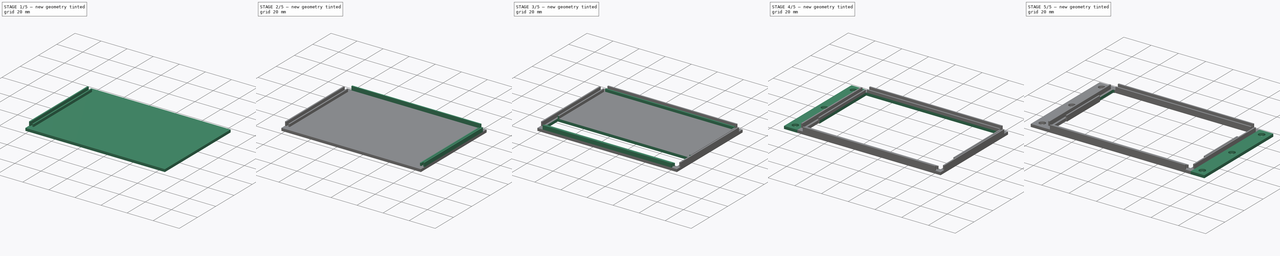
[diagram: build sequence overview — one tinted view per stage of 5, left to right]
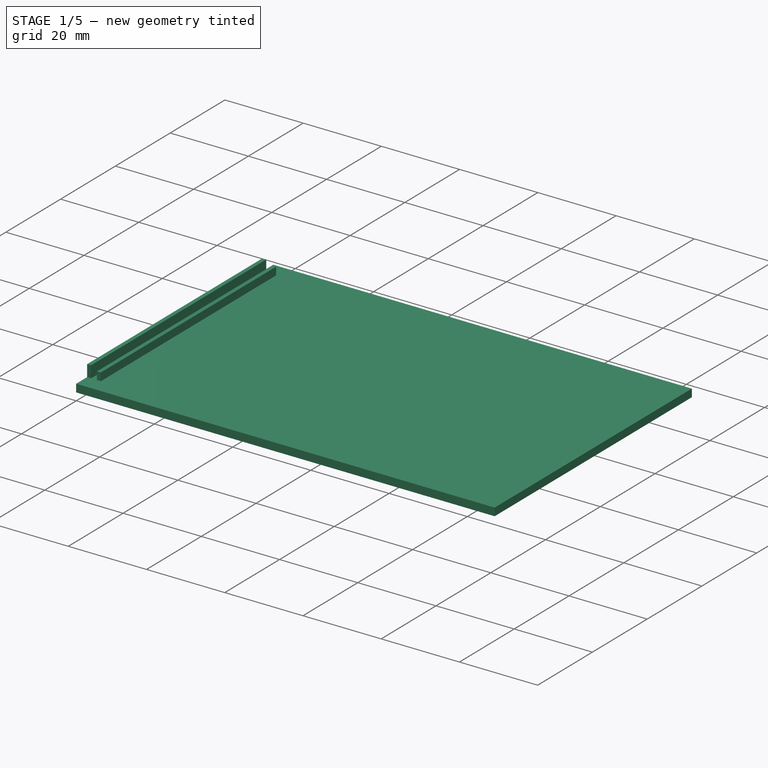
[diagram: stage 1 of 5 — iso view after this stage's code; geometry added in this stage tinted green]
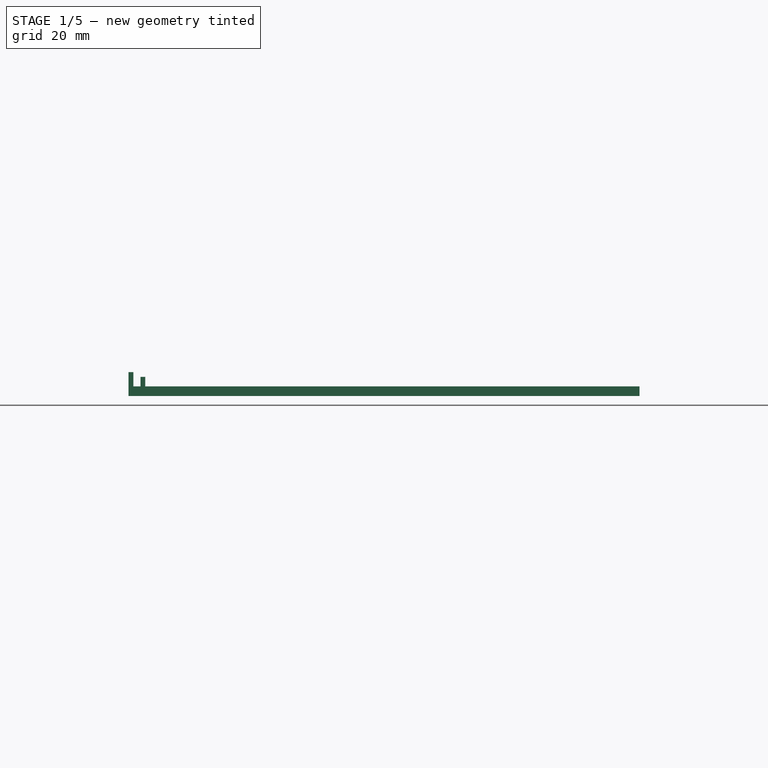
[diagram: stage 1 of 5 — front view after this stage's code; geometry added in this stage tinted green]
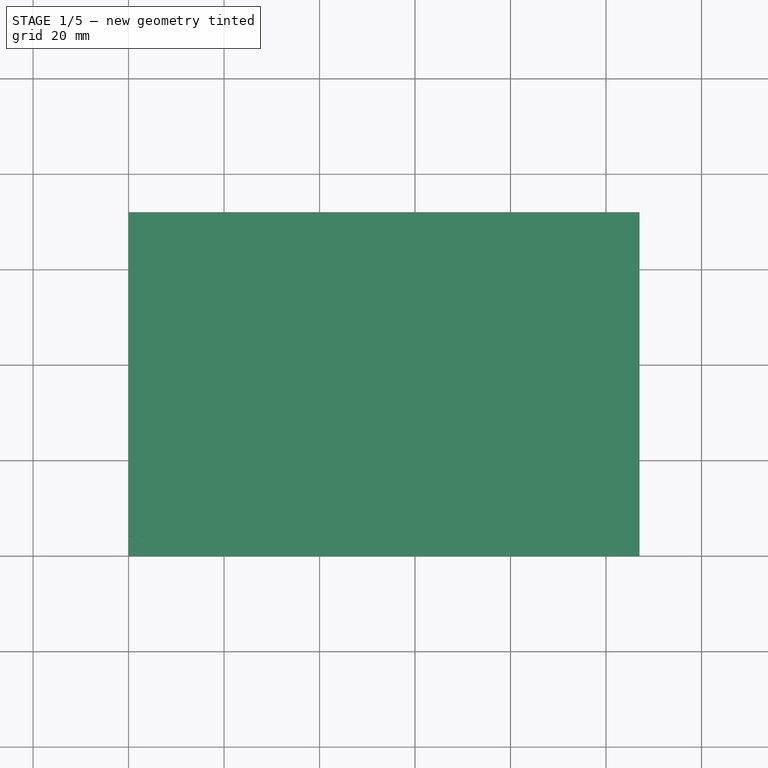
[diagram: stage 1 of 5 — top view after this stage's code; geometry added in this stage tinted green]
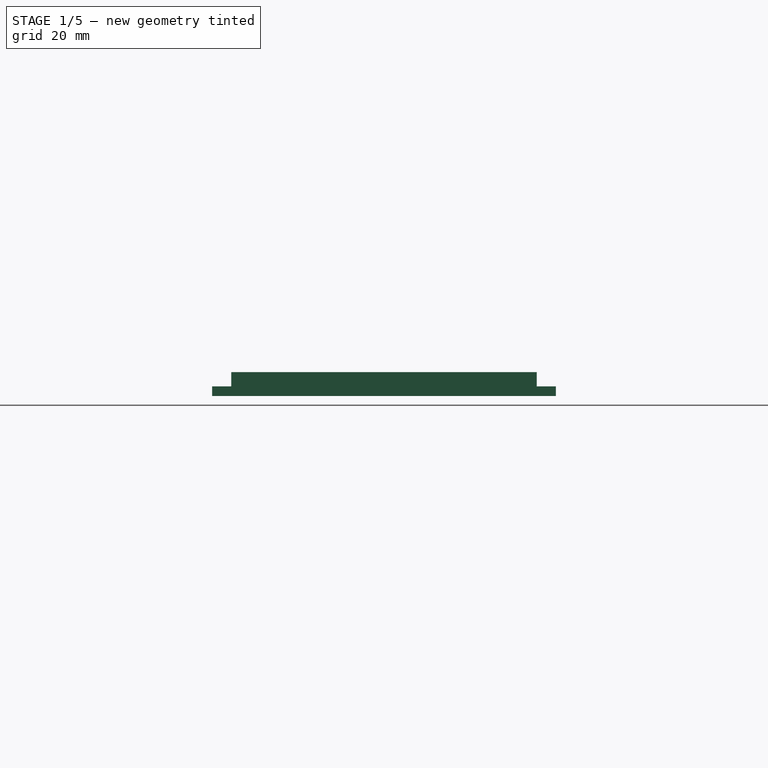
[diagram: stage 1 of 5 — right view after this stage's code; geometry added in this stage tinted green]
FCSTD DOCUMENT  (FreeCAD 0.17R13541 (Git))
Label: pi_box_front
License: All rights reserved
LicenseURL: http://en.wikipedia.org/wiki/All_rights_reserved
objects: Sketcher::SketchObject×16, PartDesign::Pad×11, PartDesign::Pocket×5, PartDesign::Body×1
note: 49 computed .brp shape members not serialized (recipe doc carries the construction recipe); baked Part::Feature solids carry a one-line shape summary decoded from their .brp

FEATURE [Sketcher::SketchObject] Sketch
  MapMode = 5
  Support = -> [XY_Plane]
  sketch-geometry (4):
    g0: LineSegment StartX=0 StartY=0 StartZ=0 EndX=107 EndY=0 EndZ=0
    g1: LineSegment StartX=107 StartY=0 StartZ=0 EndX=107 EndY=72 EndZ=0
    g2: LineSegment StartX=107 StartY=72 StartZ=0 EndX=0 EndY=72 EndZ=0
    g3: LineSegment StartX=0 StartY=72 StartZ=0 EndX=0 EndY=0 EndZ=0
  constraints (12):
    c: Coincident(g0,g1)
    c: Coincident(g1,g2)
    c: Coincident(g2,g3)
    c: Coincident(g3,g0)
    c: Horizontal(g0)
    c: Horizontal(g2)
    c: Vertical(g1)
    c: Vertical(g3)
    c: DistanceX(g0) = 0
    c: DistanceY(g0) = 0
    c: Distance(g3) = 72
    c: Distance(g0) = 107
FEATURE [PartDesign::Pad] Pad
  Length = 2
  Length2 = 100
  Profile = -> Sketch
  Reversed = true
  Type = 0
FEATURE [Sketcher::SketchObject] Sketch001
  MapMode = 5
  Support = -> [XY_Plane]
  sketch-geometry (4):
    g0: LineSegment StartX=0 StartY=68 StartZ=0 EndX=1 EndY=68 EndZ=0
    g1: LineSegment StartX=1 StartY=68 StartZ=0 EndX=1 EndY=4 EndZ=0
    g2: LineSegment StartX=1 StartY=4 StartZ=0 EndX=0 EndY=4 EndZ=0
    g3: LineSegment StartX=0 StartY=4 StartZ=0 EndX=0 EndY=68 EndZ=0
  constraints (14):
    c: Coincident(g0,g1)
    c: Coincident(g1,g2)
    c: Coincident(g2,g3)
    c: Coincident(g3,g0)
    c: Horizontal(g0)
    c: Horizontal(g2)
    c: Vertical(g1)
    c: Vertical(g3)
    c: Distance(g0) = 1
    c: Equal(g0,g2)
    c: Equal(g1,g3)
    c: Distance(g3) = 64
    c: DistanceX(g2) = 0
    c: DistanceY(g2) = 4
FEATURE [PartDesign::Pad] Pad001
  BaseFeature = -> Pad
  Length = 3
  Length2 = 100
  Profile = -> Sketch001
  Type = 0
FEATURE [Sketcher::SketchObject] Sketch002
  MapMode = 5
  Support = -> [XY_Plane]
  sketch-geometry (4):
    g0: LineSegment StartX=2.5 StartY=68 StartZ=0 EndX=3.5 EndY=68 EndZ=0
    g1: LineSegment StartX=3.5 StartY=68 StartZ=0 EndX=3.5 EndY=4 EndZ=0
    g2: LineSegment StartX=3.5 StartY=4 StartZ=0 EndX=2.5 EndY=4 EndZ=0
    g3: LineSegment StartX=2.5 StartY=4 StartZ=0 EndX=2.5 EndY=68 EndZ=0
  constraints (14):
    c: Coincident(g0,g1)
    c: Coincident(g1,g2)
    c: Coincident(g2,g3)
    c: Coincident(g3,g0)
    c: Horizontal(g0)
    c: Horizontal(g2)
    c: Vertical(g1)
    c: Vertical(g3)
    c: Distance(g0) = 1
    c: Equal(g0,g2)
    c: Equal(g1,g3)
    c: Distance(g3) = 64
    c: DistanceX(g2) = 2.5
    c: DistanceY(g2) = 4
FEATURE [PartDesign::Pad] Pad002
  BaseFeature = -> Pad001
  Length = 2
  Length2 = 100
  Profile = -> Sketch002
  Type = 0
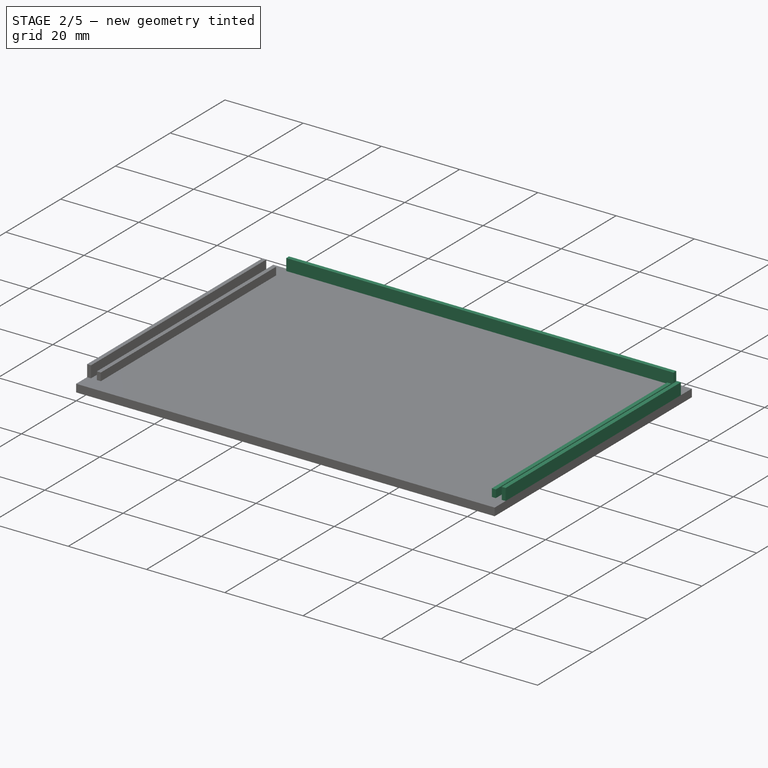
[diagram: stage 2 of 5 — iso view after this stage's code; geometry added in this stage tinted green]
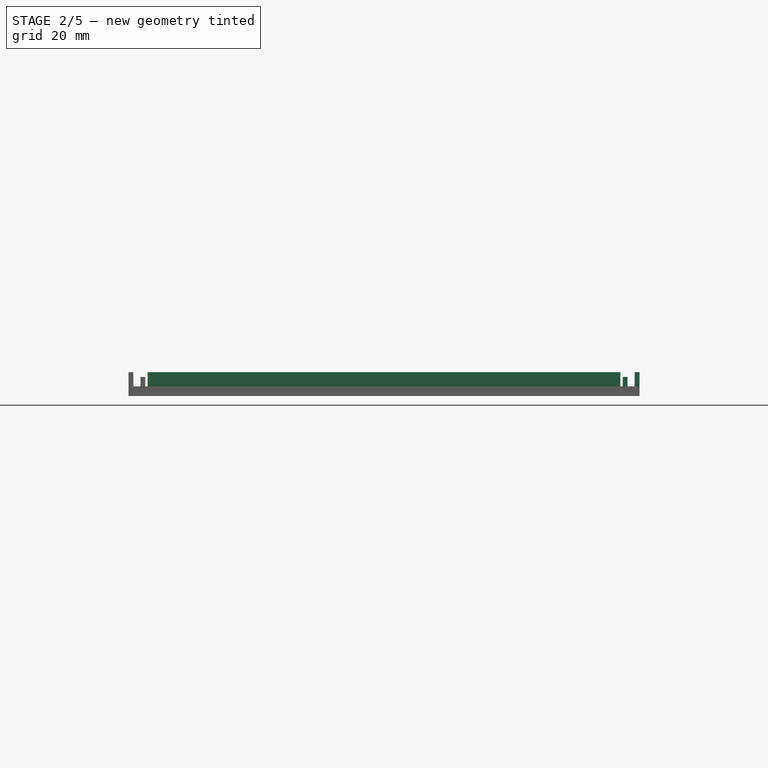
[diagram: stage 2 of 5 — front view after this stage's code; geometry added in this stage tinted green]
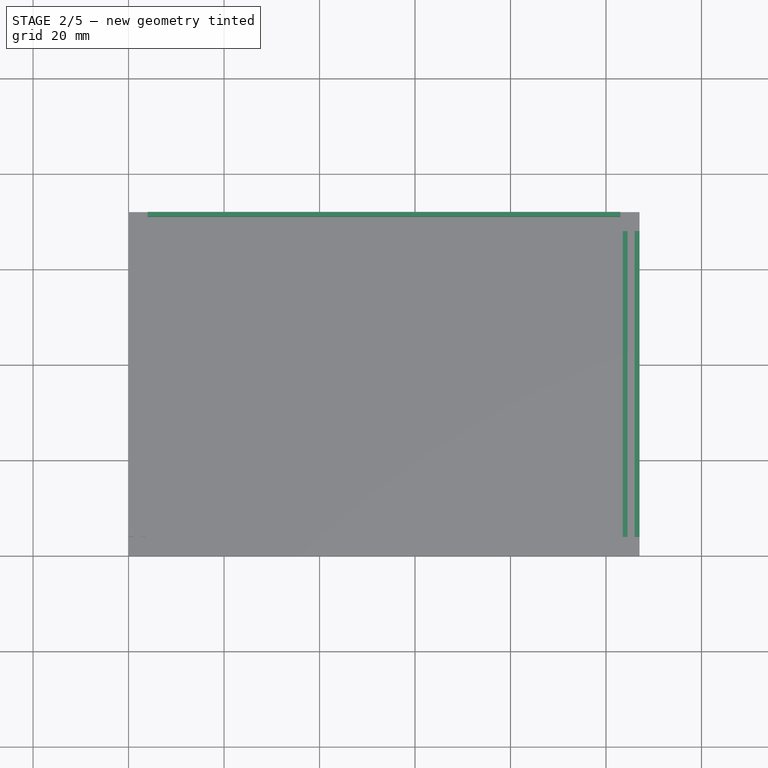
[diagram: stage 2 of 5 — top view after this stage's code; geometry added in this stage tinted green]
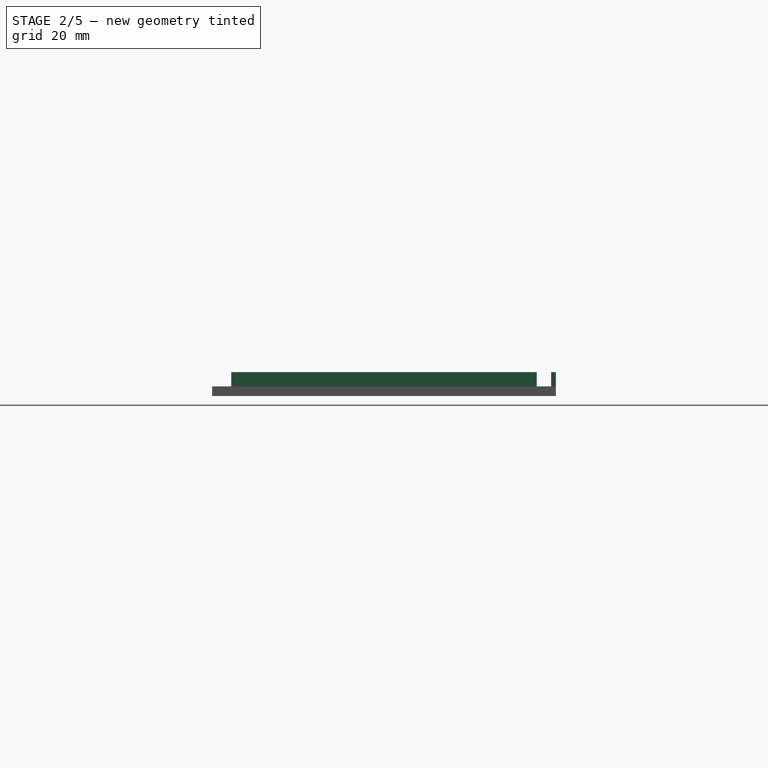
[diagram: stage 2 of 5 — right view after this stage's code; geometry added in this stage tinted green]
FEATURE [Sketcher::SketchObject] Sketch003
  MapMode = 5
  Support = -> [XY_Plane]
  sketch-geometry (4):
    g0: LineSegment StartX=104.5 StartY=68 StartZ=0 EndX=103.5 EndY=68 EndZ=0
    g1: LineSegment StartX=103.5 StartY=68 StartZ=0 EndX=103.5 EndY=4 EndZ=0
    g2: LineSegment StartX=103.5 StartY=4 StartZ=0 EndX=104.5 EndY=4 EndZ=0
    g3: LineSegment StartX=104.5 StartY=4 StartZ=0 EndX=104.5 EndY=68 EndZ=0
  constraints (14):
    c: Coincident(g0,g1)
    c: Coincident(g1,g2)
    c: Coincident(g2,g3)
    c: Coincident(g3,g0)
    c: Horizontal(g0)
    c: Horizontal(g2)
    c: Vertical(g1)
    c: Vertical(g3)
    c: Distance(g0) = 1
    c: Equal(g0,g2)
    c: Equal(g1,g3)
    c: Distance(g3) = 64
    c: DistanceX(g2) = 104.5
    c: DistanceY(g2) = 4
FEATURE [PartDesign::Pad] Pad003
  BaseFeature = -> Pad002
  Length = 2
  Length2 = 100
  Profile = -> Sketch003
  Type = 0
FEATURE [Sketcher::SketchObject] Sketch004
  MapMode = 5
  Support = -> [XY_Plane]
  sketch-geometry (4):
    g0: LineSegment StartX=107 StartY=68 StartZ=0 EndX=106 EndY=68 EndZ=0
    g1: LineSegment StartX=106 StartY=68 StartZ=0 EndX=106 EndY=4 EndZ=0
    g2: LineSegment StartX=106 StartY=4 StartZ=0 EndX=107 EndY=4 EndZ=0
    g3: LineSegment StartX=107 StartY=4 StartZ=0 EndX=107 EndY=68 EndZ=0
  constraints (14):
    c: Coincident(g0,g1)
    c: Coincident(g1,g2)
    c: Coincident(g2,g3)
    c: Coincident(g3,g0)
    c: Horizontal(g0)
    c: Horizontal(g2)
    c: Vertical(g1)
    c: Vertical(g3)
    c: Distance(g0) = 1
    c: Equal(g0,g2)
    c: Equal(g1,g3)
    c: Distance(g3) = 64
    c: DistanceX(g2) = 107
    c: DistanceY(g2) = 4
FEATURE [PartDesign::Pad] Pad004
  BaseFeature = -> Pad003
  Length = 3
  Length2 = 100
  Profile = -> Sketch004
  Type = 0
FEATURE [Sketcher::SketchObject] Sketch005
  MapMode = 5
  Support = -> [XY_Plane]
  sketch-geometry (4):
    g0: LineSegment StartX=4 StartY=72 StartZ=0 EndX=103 EndY=72 EndZ=0
    g1: LineSegment StartX=103 StartY=72 StartZ=0 EndX=103 EndY=71 EndZ=0
    g2: LineSegment StartX=103 StartY=71 StartZ=0 EndX=4 EndY=71 EndZ=0
    g3: LineSegment StartX=4 StartY=71 StartZ=0 EndX=4 EndY=72 EndZ=0
  constraints (14):
    c: Coincident(g0,g1)
    c: Coincident(g1,g2)
    c: Coincident(g2,g3)
    c: Coincident(g3,g0)
    c: Horizontal(g0)
    c: Horizontal(g2)
    c: Vertical(g1)
    c: Vertical(g3)
    c: Equal(g0,g2)
    c: Equal(g1,g3)
    c: Distance(g0) = 99
    c: Distance(g3) = 1
    c: DistanceX(g0) = 4
    c: DistanceY(g0) = 72
FEATURE [PartDesign::Pad] Pad005
  BaseFeature = -> Pad004
  Length = 3
  Length2 = 100
  Profile = -> Sketch005
  Type = 0
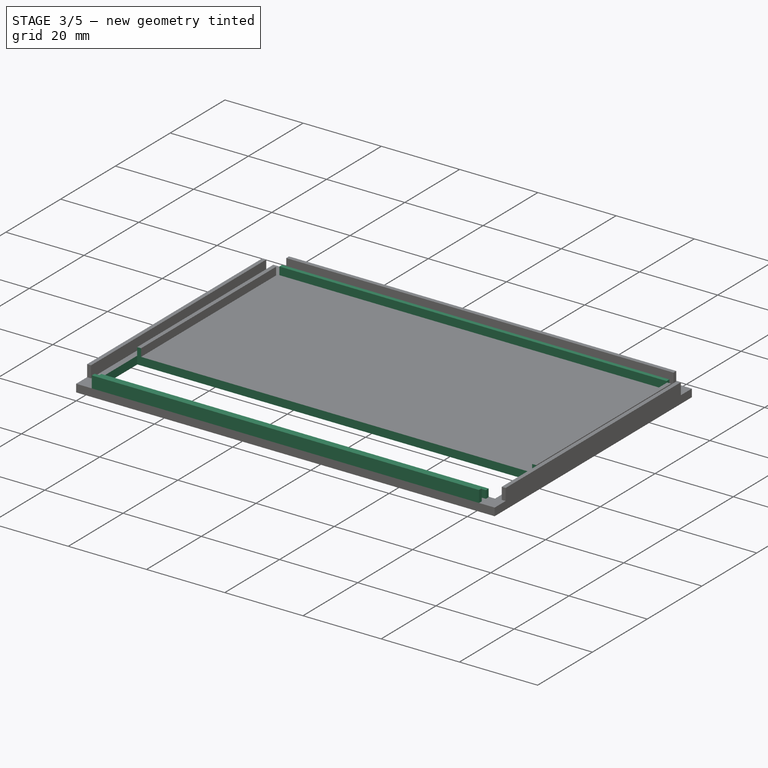
[diagram: stage 3 of 5 — iso view after this stage's code; geometry added in this stage tinted green]
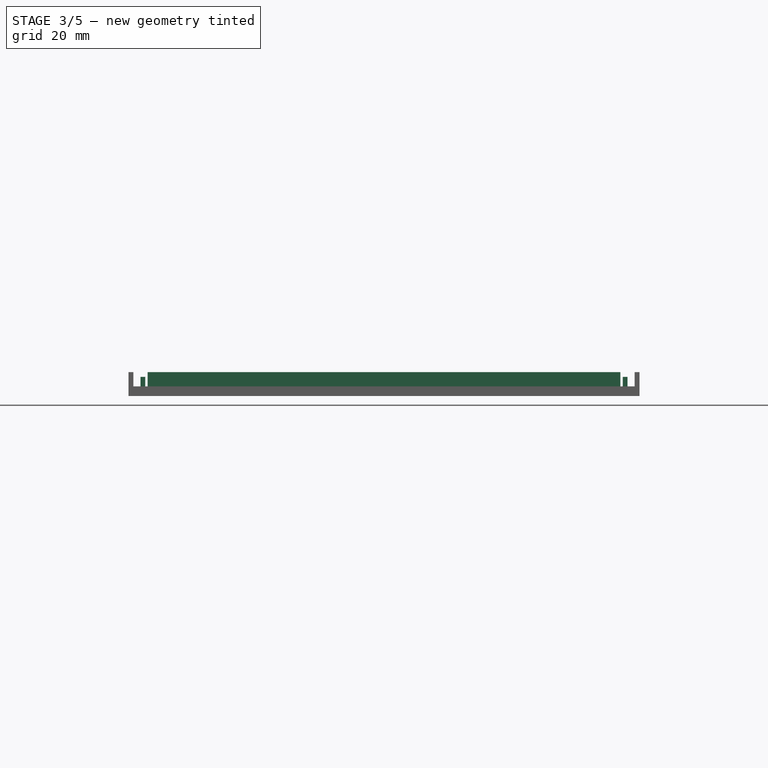
[diagram: stage 3 of 5 — front view after this stage's code; geometry added in this stage tinted green]
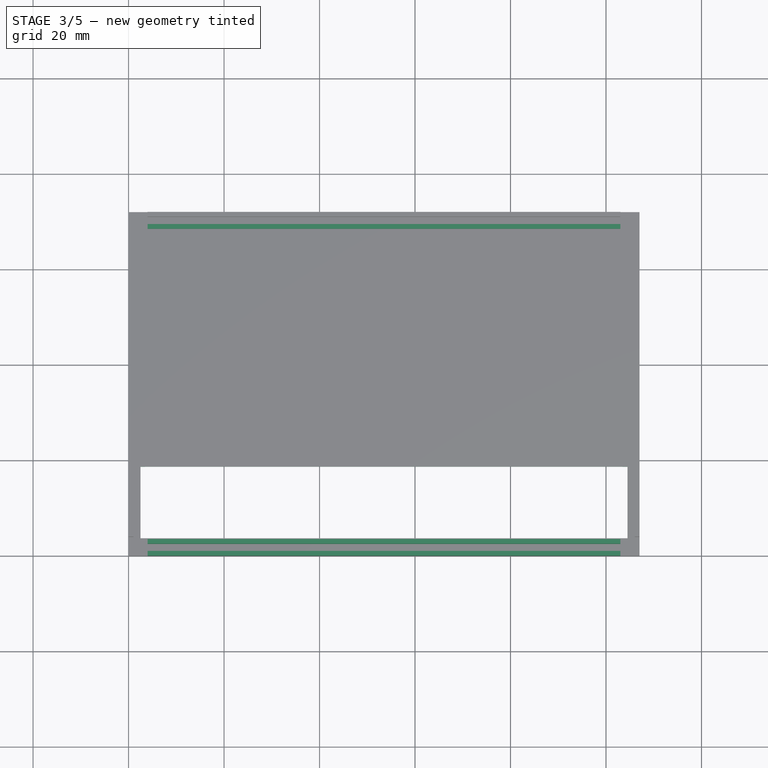
[diagram: stage 3 of 5 — top view after this stage's code; geometry added in this stage tinted green]
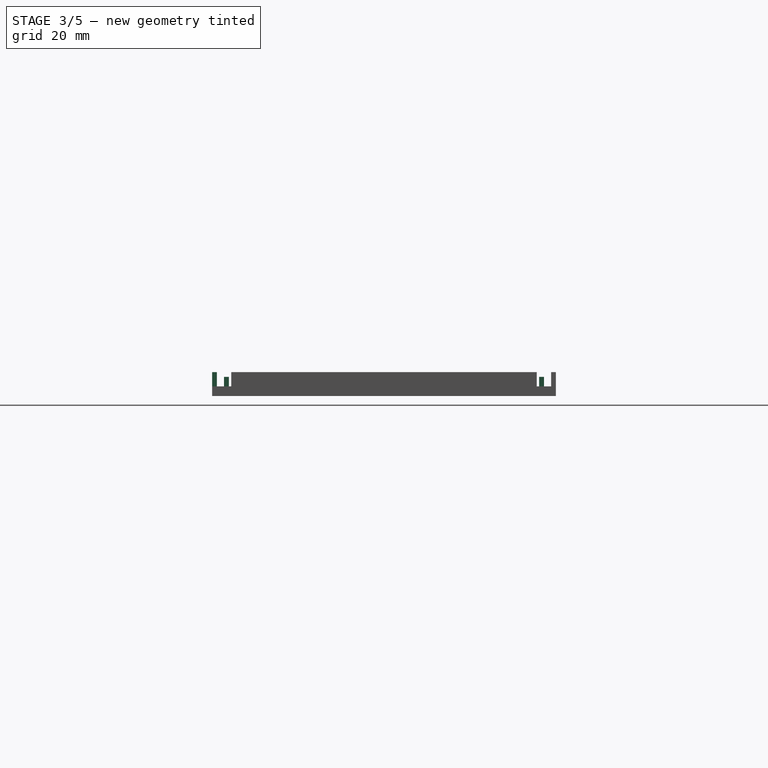
[diagram: stage 3 of 5 — right view after this stage's code; geometry added in this stage tinted green]
FEATURE [Sketcher::SketchObject] Sketch006
  MapMode = 5
  Support = -> [XY_Plane]
  sketch-geometry (4):
    g0: LineSegment StartX=4 StartY=69.5 StartZ=0 EndX=103 EndY=69.5 EndZ=0
    g1: LineSegment StartX=103 StartY=69.5 StartZ=0 EndX=103 EndY=68.5 EndZ=0
    g2: LineSegment StartX=103 StartY=68.5 StartZ=0 EndX=4 EndY=68.5 EndZ=0
    g3: LineSegment StartX=4 StartY=68.5 StartZ=0 EndX=4 EndY=69.5 EndZ=0
  constraints (14):
    c: Coincident(g0,g1)
    c: Coincident(g1,g2)
    c: Coincident(g2,g3)
    c: Coincident(g3,g0)
    c: Horizontal(g0)
    c: Horizontal(g2)
    c: Vertical(g1)
    c: Vertical(g3)
    c: Equal(g0,g2)
    c: Equal(g1,g3)
    c: Distance(g0) = 99
    c: Distance(g3) = 1
    c: DistanceX(g0) = 4
    c: DistanceY(g0) = 69.5
FEATURE [PartDesign::Pad] Pad006
  BaseFeature = -> Pad005
  Length = 2
  Length2 = 100
  Profile = -> Sketch006
  Type = 0
FEATURE [Sketcher::SketchObject] Sketch007
  MapMode = 5
  Support = -> [XY_Plane]
  sketch-geometry (4):
    g0: LineSegment StartX=4 StartY=2.5 StartZ=0 EndX=103 EndY=2.5 EndZ=0
    g1: LineSegment StartX=103 StartY=2.5 StartZ=0 EndX=103 EndY=3.5 EndZ=0
    g2: LineSegment StartX=103 StartY=3.5 StartZ=0 EndX=4 EndY=3.5 EndZ=0
    g3: LineSegment StartX=4 StartY=3.5 StartZ=0 EndX=4 EndY=2.5 EndZ=0
  constraints (14):
    c: Coincident(g0,g1)
    c: Coincident(g1,g2)
    c: Coincident(g2,g3)
    c: Coincident(g3,g0)
    c: Horizontal(g0)
    c: Horizontal(g2)
    c: Vertical(g1)
    c: Vertical(g3)
    c: Equal(g0,g2)
    c: Equal(g1,g3)
    c: Distance(g0) = 99
    c: Distance(g3) = 1
    c: DistanceX(g0) = 4
    c: DistanceY(g0) = 2.5
FEATURE [PartDesign::Pad] Pad007
  BaseFeature = -> Pad006
  Length = 2
  Length2 = 100
  Profile = -> Sketch007
  Type = 0
FEATURE [Sketcher::SketchObject] Sketch008
  MapMode = 5
  Support = -> [XY_Plane]
  sketch-geometry (4):
    g0: LineSegment StartX=4 StartY=0 StartZ=0 EndX=103 EndY=0 EndZ=0
    g1: LineSegment StartX=103 StartY=0 StartZ=0 EndX=103 EndY=1 EndZ=0
    g2: LineSegment StartX=103 StartY=1 StartZ=0 EndX=4 EndY=1 EndZ=0
    g3: LineSegment StartX=4 StartY=1 StartZ=0 EndX=4 EndY=0 EndZ=0
  constraints (14):
    c: Coincident(g0,g1)
    c: Coincident(g1,g2)
    c: Coincident(g2,g3)
    c: Coincident(g3,g0)
    c: Horizontal(g0)
    c: Horizontal(g2)
    c: Vertical(g1)
    c: Vertical(g3)
    c: Equal(g0,g2)
    c: Equal(g1,g3)
    c: Distance(g0) = 99
    c: Distance(g3) = 1
    c: DistanceX(g0) = 4
    c: DistanceY(g0) = 0
FEATURE [PartDesign::Pad] Pad008
  BaseFeature = -> Pad007
  Length = 3
  Length2 = 100
  Profile = -> Sketch008
  Type = 0
FEATURE [Sketcher::SketchObject] Sketch009
  MapMode = 5
  Support = -> [XY_Plane]
  sketch-geometry (4):
    g0: LineSegment StartX=2.5 StartY=18.7 StartZ=0 EndX=104.5 EndY=18.7 EndZ=0
    g1: LineSegment StartX=104.5 StartY=18.7 StartZ=0 EndX=104.5 EndY=3.7 EndZ=0
    g2: LineSegment StartX=104.5 StartY=3.7 StartZ=0 EndX=2.5 EndY=3.7 EndZ=0
    g3: LineSegment StartX=2.5 StartY=3.7 StartZ=0 EndX=2.5 EndY=18.7 EndZ=0
  constraints (13):
    c: Coincident(g0,g1)
    c: Coincident(g1,g2)
    c: Coincident(g2,g3)
    c: Coincident(g3,g0)
    c: Horizontal(g0)
    c: Horizontal(g2)
    c: Vertical(g1)
    c: Vertical(g3)
    c: Distance(g0) = 102
    c: Equal(g0,g2)
    c: Distance(g1) = 15
    c: DistanceX(g2) = 2.5
    c: DistanceY(g2) = 3.7
FEATURE [PartDesign::Pocket] Pocket
  BaseFeature = -> Pad008
  Length = 5
  Length2 = 100
  Midplane = true
  Profile = -> Sketch009
  Reversed = true
  Type = 1
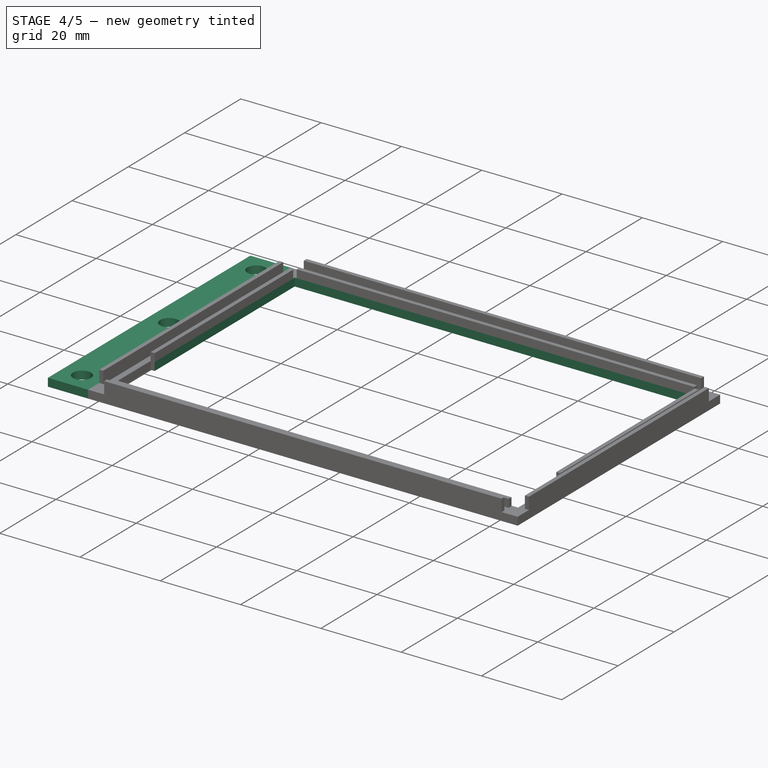
[diagram: stage 4 of 5 — iso view after this stage's code; geometry added in this stage tinted green]
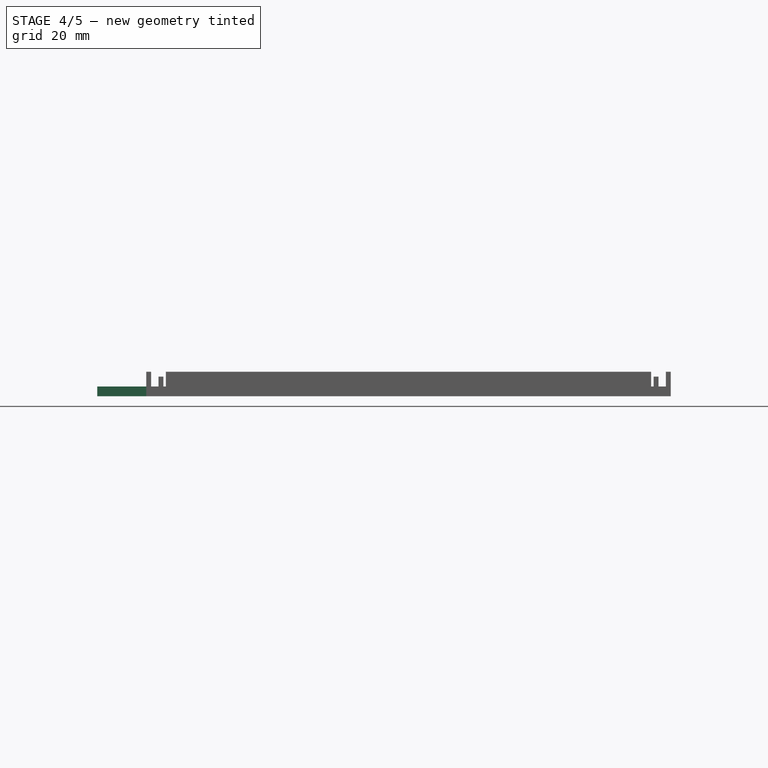
[diagram: stage 4 of 5 — front view after this stage's code; geometry added in this stage tinted green]
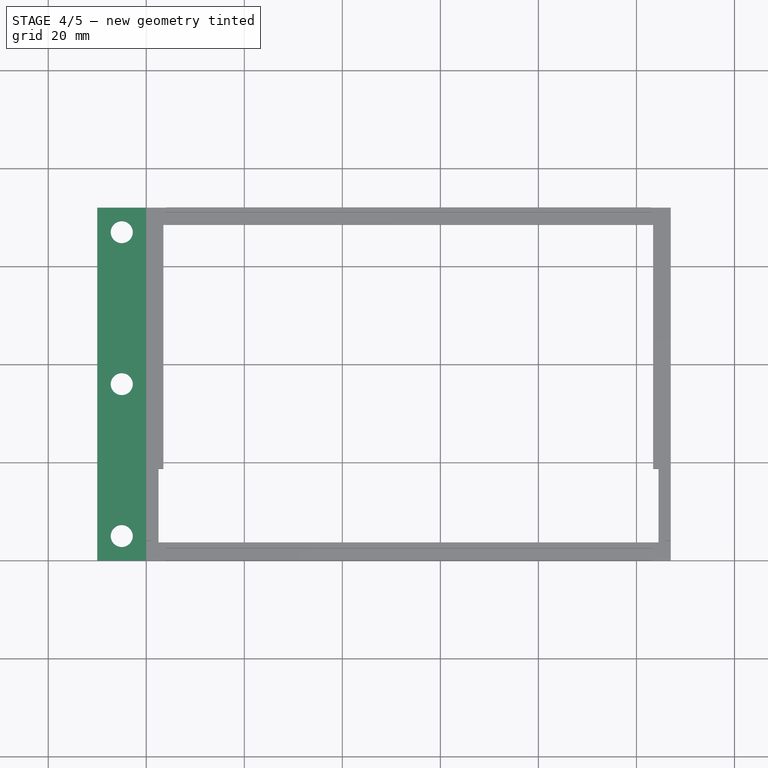
[diagram: stage 4 of 5 — top view after this stage's code; geometry added in this stage tinted green]
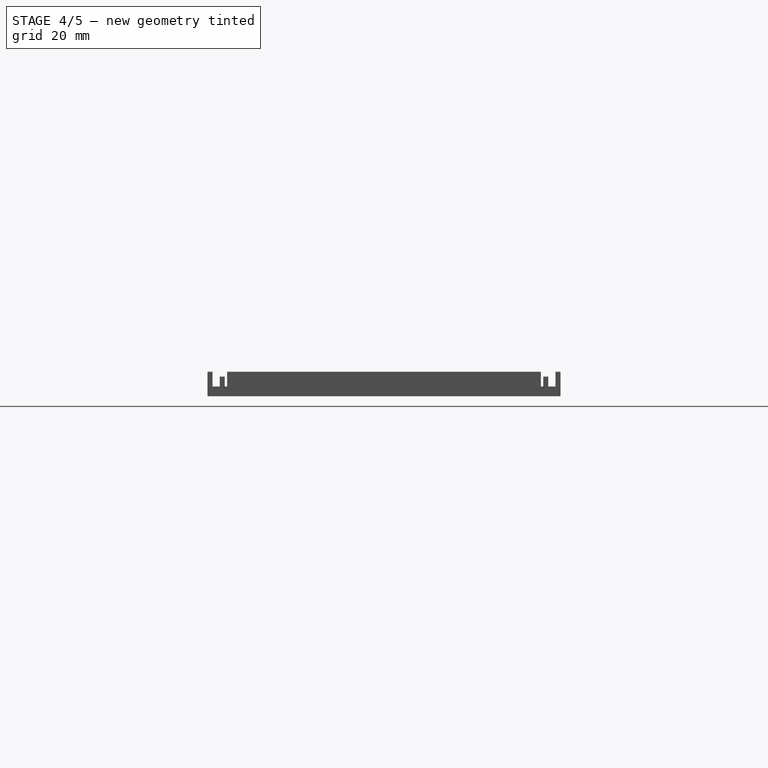
[diagram: stage 4 of 5 — right view after this stage's code; geometry added in this stage tinted green]
FEATURE [Sketcher::SketchObject] Sketch010
  MapMode = 5
  Support = -> [XY_Plane]
  sketch-geometry (4):
    g0: LineSegment StartX=3.5 StartY=68.5 StartZ=0 EndX=103.396 EndY=68.5 EndZ=0
    g1: LineSegment StartX=103.396 StartY=68.5 StartZ=0 EndX=103.396 EndY=18.5 EndZ=0
    g2: LineSegment StartX=103.396 StartY=18.5 StartZ=0 EndX=3.5 EndY=18.5 EndZ=0
    g3: LineSegment StartX=3.5 StartY=18.5 StartZ=0 EndX=3.5 EndY=68.5 EndZ=0
  constraints (11):
    c: Coincident(g0,g1)
    c: Coincident(g1,g2)
    c: Coincident(g2,g3)
    c: Coincident(g3,g0)
    c: Horizontal(g0)
    c: Horizontal(g2)
    c: Vertical(g1)
    c: Vertical(g3)
    c: DistanceX(g2) = 3.5
    c: DistanceY(g2) = 18.5
    c: Distance(g1) = 50
FEATURE [PartDesign::Pocket] Pocket001
  BaseFeature = -> Pocket
  Length = 5
  Length2 = 100
  Profile = -> Sketch010
  Type = 1
FEATURE [Sketcher::SketchObject] Sketch011
  MapMode = 5
  Support = -> [XY_Plane]
  sketch-geometry (4):
    g0: LineSegment StartX=0 StartY=0 StartZ=0 EndX=-10 EndY=0 EndZ=0
    g1: LineSegment StartX=-10 StartY=0 StartZ=0 EndX=-10 EndY=72 EndZ=0
    g2: LineSegment StartX=-10 StartY=72 StartZ=0 EndX=0 EndY=72 EndZ=0
    g3: LineSegment StartX=0 StartY=72 StartZ=0 EndX=0 EndY=0 EndZ=0
  constraints (13):
    c: Coincident(g0,g1)
    c: Coincident(g1,g2)
    c: Coincident(g2,g3)
    c: Coincident(g3,g0)
    c: Horizontal(g0)
    c: Horizontal(g2)
    c: Vertical(g1)
    c: Vertical(g3)
    c: DistanceX(g0) = -10
    c: DistanceY(g0) = 0
    c: Equal(g0,g2)
    c: Distance(g0) = 10
    c: Distance(g1) = 72
FEATURE [PartDesign::Pad] Pad009  label="top mount"
  BaseFeature = -> Pocket001
  Length = 2
  Length2 = 100
  Profile = -> Sketch011
  Reversed = true
  Type = 0
FEATURE [Sketcher::SketchObject] Sketch012
  MapMode = 5
  Support = -> [XY_Plane]
  sketch-geometry (3):
    g0: Circle CenterX=-5 CenterY=5 CenterZ=0 NormalX=0 NormalY=0 NormalZ=1 AngleXU=0 Radius=2.25
    g1: Circle CenterX=-5 CenterY=36 CenterZ=0 NormalX=0 NormalY=0 NormalZ=1 AngleXU=0 Radius=2.25
    g2: Circle CenterX=-5 CenterY=67 CenterZ=0 NormalX=0 NormalY=0 NormalZ=1 AngleXU=0 Radius=2.25
  constraints (9):
    c: DistanceX(g0) = -5
    c: DistanceY(g0) = 5
    c: DistanceX(g1) = -5
    c: DistanceY(g1) = 36
    c: DistanceX(g2) = -5
    c: DistanceY(g2) = 67
    c: Radius(g0) = 2.25
    c: Equal(g0,g1)
    c: Equal(g0,g2)
FEATURE [PartDesign::Pocket] Pocket002  label="top mounting holes"
  BaseFeature = -> Pad009
  Length = 5
  Length2 = 100
  Profile = -> Sketch012
  Type = 1
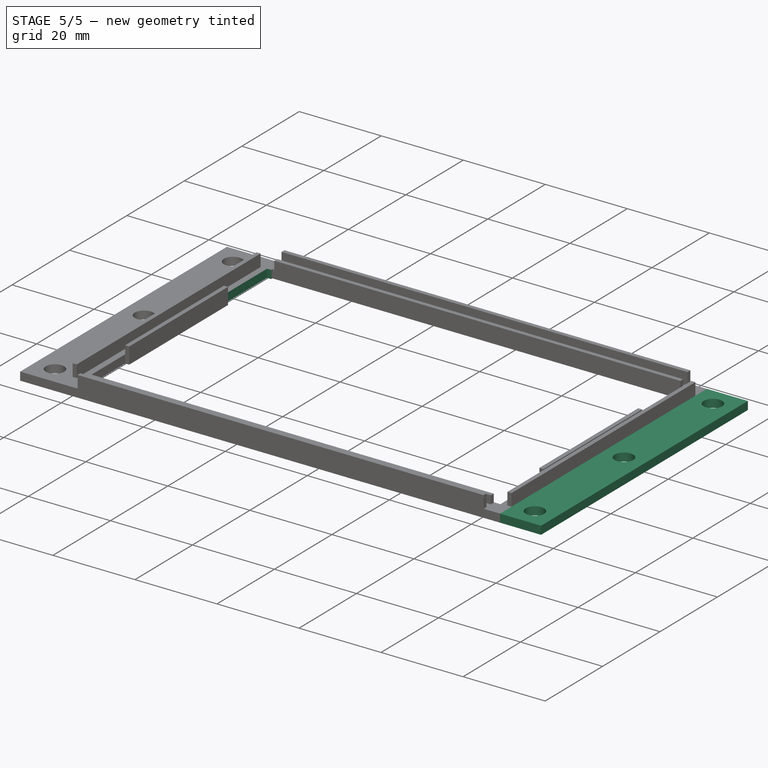
[diagram: stage 5 of 5 — iso view after this stage's code; geometry added in this stage tinted green]
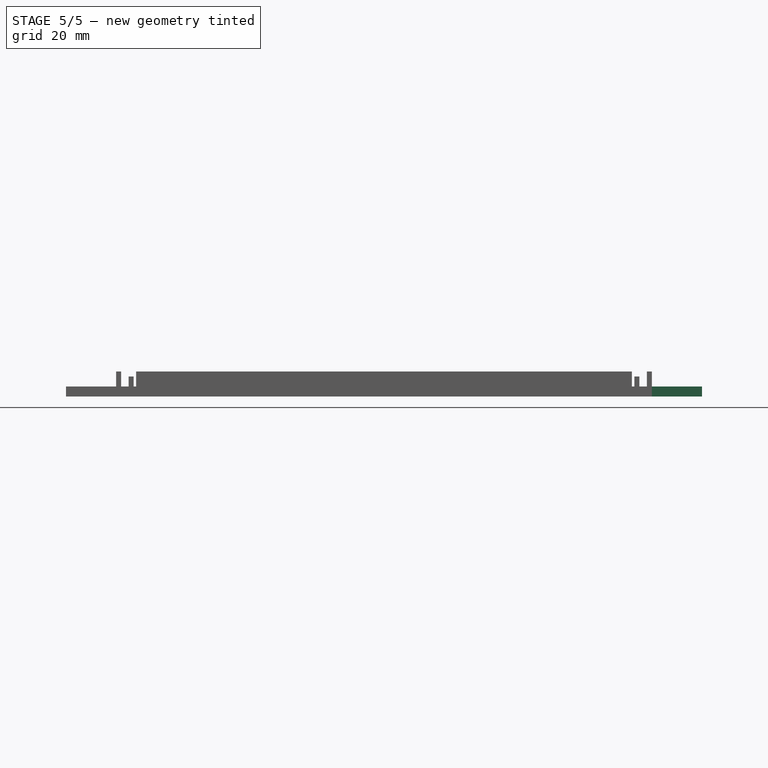
[diagram: stage 5 of 5 — front view after this stage's code; geometry added in this stage tinted green]
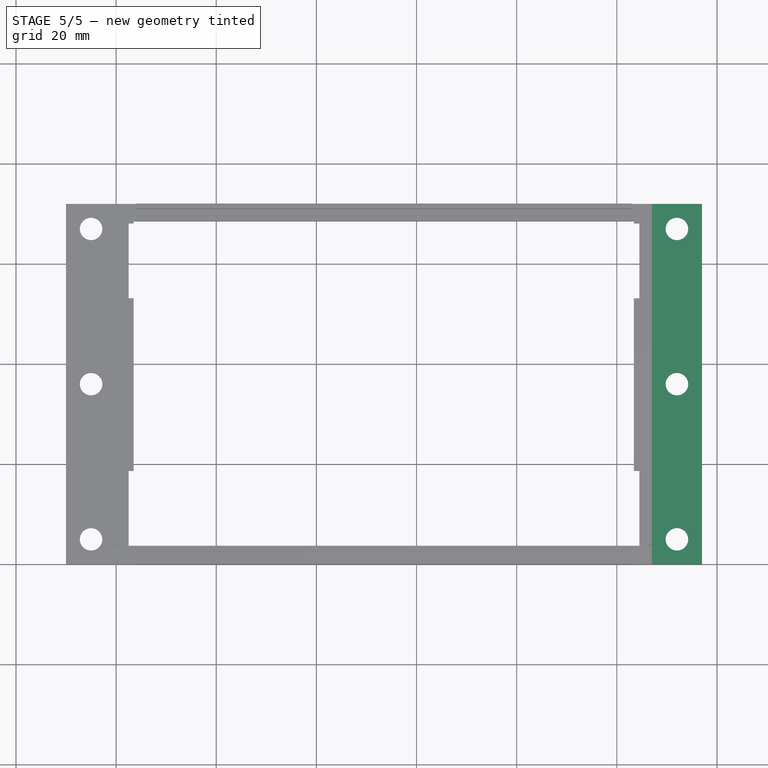
[diagram: stage 5 of 5 — top view after this stage's code; geometry added in this stage tinted green]
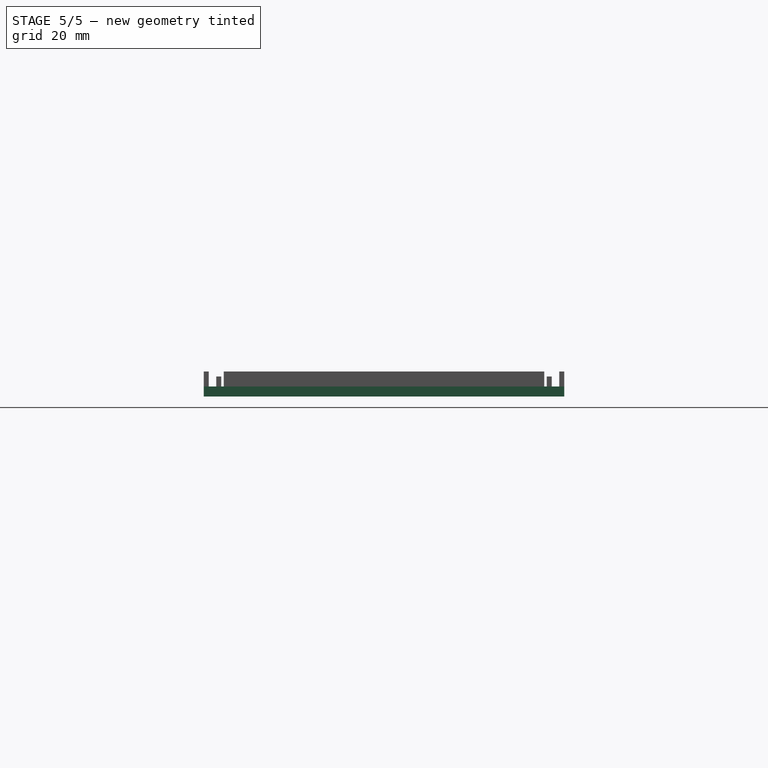
[diagram: stage 5 of 5 — right view after this stage's code; geometry added in this stage tinted green]
FEATURE [Sketcher::SketchObject] Sketch013
  MapMode = 5
  Support = -> [XY_Plane]
  sketch-geometry (3):
    g0: Circle CenterX=112 CenterY=5 CenterZ=0 NormalX=0 NormalY=0 NormalZ=1 AngleXU=0 Radius=2.25
    g1: Circle CenterX=112 CenterY=36 CenterZ=0 NormalX=0 NormalY=0 NormalZ=1 AngleXU=0 Radius=2.25
    g2: Circle CenterX=112 CenterY=67 CenterZ=0 NormalX=0 NormalY=0 NormalZ=1 AngleXU=0 Radius=2.25
  constraints (9):
    c: DistanceX(g0) = 112
    c: DistanceY(g0) = 5
    c: DistanceX(g1) = 112
    c: DistanceY(g1) = 36
    c: DistanceX(g2) = 112
    c: DistanceY(g2) = 67
    c: Radius(g0) = 2.25
    c: Equal(g0,g1)
    c: Equal(g0,g2)
FEATURE [Sketcher::SketchObject] Sketch014
  MapMode = 5
  Support = -> [XY_Plane]
  sketch-geometry (4):
    g0: LineSegment StartX=107 StartY=0 StartZ=0 EndX=117 EndY=0 EndZ=0
    g1: LineSegment StartX=117 StartY=0 StartZ=0 EndX=117 EndY=72 EndZ=0
    g2: LineSegment StartX=117 StartY=72 StartZ=0 EndX=107 EndY=72 EndZ=0
    g3: LineSegment StartX=107 StartY=72 StartZ=0 EndX=107 EndY=0 EndZ=0
  constraints (13):
    c: Coincident(g0,g1)
    c: Coincident(g1,g2)
    c: Coincident(g2,g3)
    c: Coincident(g3,g0)
    c: Horizontal(g0)
    c: Horizontal(g2)
    c: Vertical(g1)
    c: Vertical(g3)
    c: DistanceX(g0) = 117
    c: DistanceY(g0) = 0
    c: Equal(g0,g2)
    c: Distance(g0) = 10
    c: Distance(g1) = 72
FEATURE [PartDesign::Pad] Pad010  label="bottom mount"
  BaseFeature = -> Pocket002
  Length = 2
  Length2 = 100
  Profile = -> Sketch014
  Reversed = true
  Type = 0
FEATURE [PartDesign::Pocket] Pocket003  label="bottom mounting holes"
  BaseFeature = -> Pad010
  Length = 5
  Length2 = 100
  Profile = -> Sketch013
  Type = 1
FEATURE [Sketcher::SketchObject] Sketch015
  MapMode = 5
  Support = -> [XY_Plane]
  sketch-geometry (4):
    g0: LineSegment StartX=2.5 StartY=53.1 StartZ=0 EndX=104.5 EndY=53.1 EndZ=0
    g1: LineSegment StartX=104.5 StartY=53.1 StartZ=0 EndX=104.5 EndY=68.1 EndZ=0
    g2: LineSegment StartX=104.5 StartY=68.1 StartZ=0 EndX=2.5 EndY=68.1 EndZ=0
    g3: LineSegment StartX=2.5 StartY=68.1 StartZ=0 EndX=2.5 EndY=53.1 EndZ=0
  constraints (13):
    c: Coincident(g0,g1)
    c: Coincident(g1,g2)
    c: Coincident(g2,g3)
    c: Coincident(g3,g0)
    c: Horizontal(g0)
    c: Horizontal(g2)
    c: Vertical(g1)
    c: Vertical(g3)
    c: Distance(g0) = 102
    c: Equal(g0,g2)
    c: Distance(g1) = 15
    c: DistanceX(g2) = 2.5
    c: DistanceY(g2) = 68.1
FEATURE [PartDesign::Pocket] Pocket004
  BaseFeature = -> Pocket003
  Length = 2
  Length2 = 2
  Profile = -> Sketch015
  Reversed = true
  Type = 4
FEATURE [PartDesign::Body] Body
  Group = -> [Sketch,Pad,Sketch001,Pad001,Sketch002,Pad002,Sketch003,Pad003,Sketch004,Pad004,Sketch005,Pad005,Sketch006,Pad006,Sketch007,Pad007,Sketch008,Pad008,Sketch009,Pocket,Sketch010,Pocket001,Sketch011,Pad009,Sketch012,Pocket002,Sketch013,Sketch014,Pad010,Pocket003,Sketch015,Pocket004]
  Origin = -> Origin
  Tip = -> Pocket004
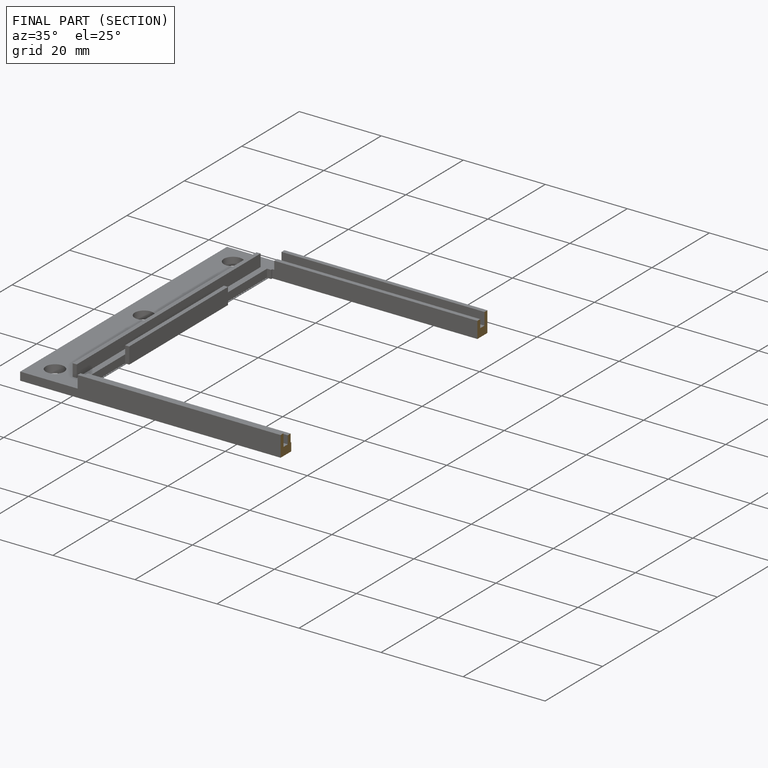
[diagram: finished part — half-section view (interior)]
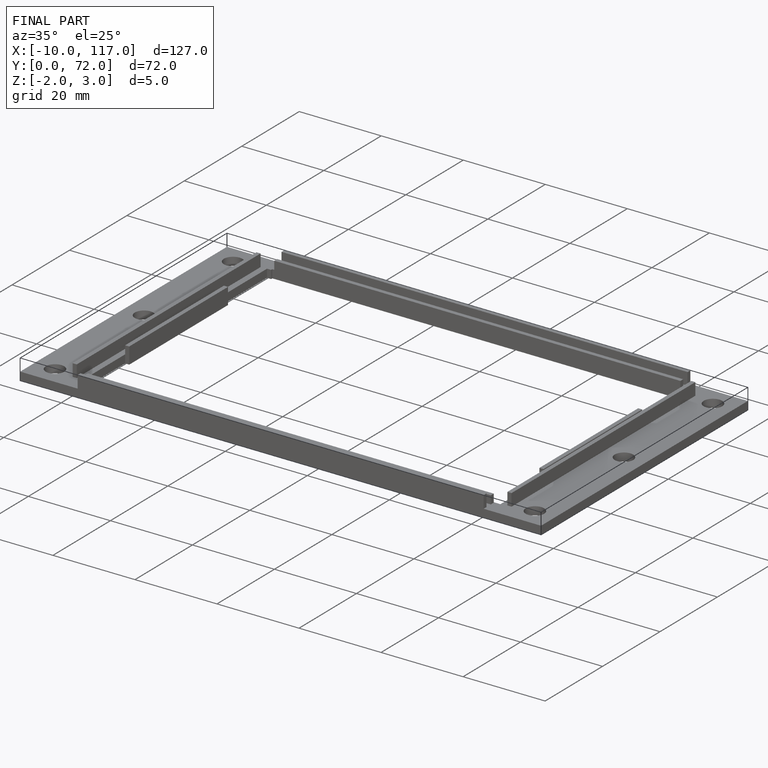
[diagram: finished part — iso view with bounding-box wireframe]
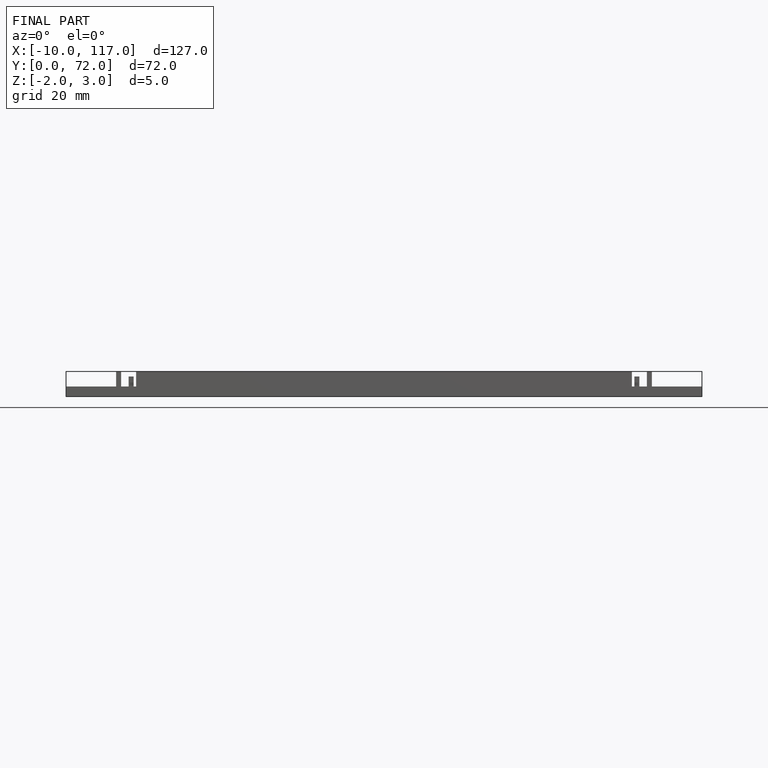
[diagram: finished part — front view with bounding-box wireframe]
